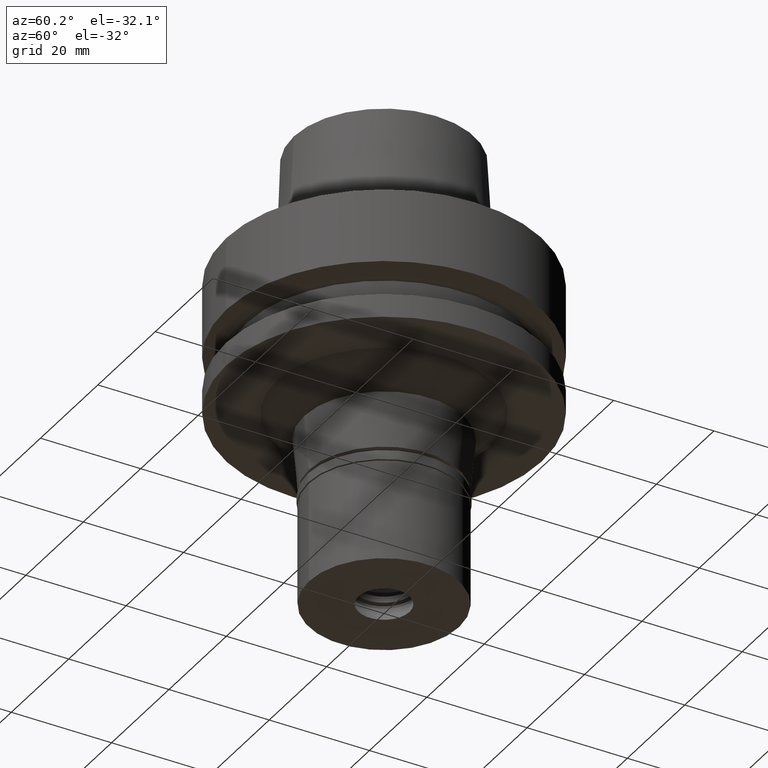
[diagram: clean part render]
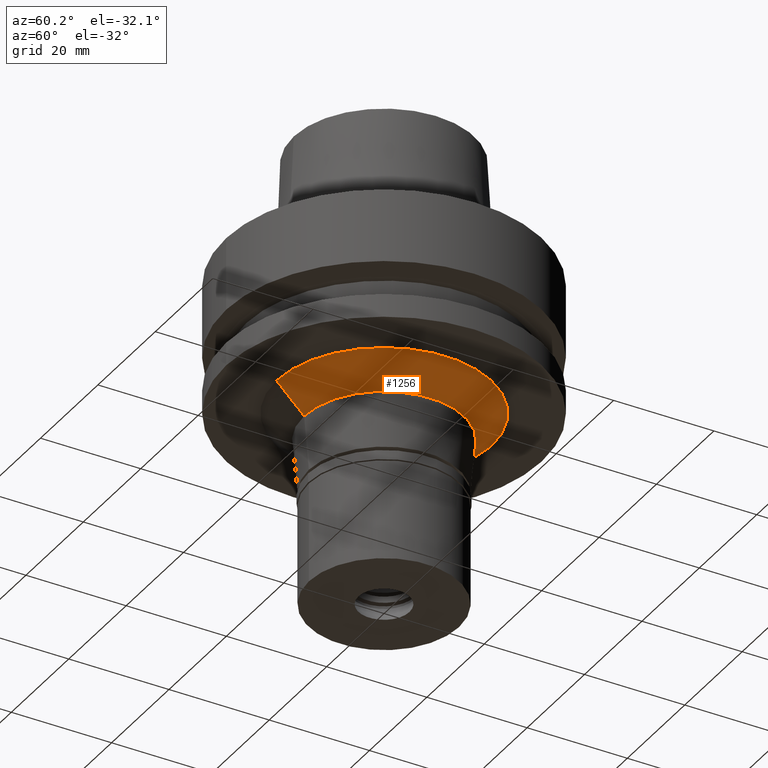
[diagram: same view with one face highlighted and labeled with its STEP entity id]
A machine part, auxiliary view. The second image highlights one B-rep face of the part: STEP entity #1256.
In plain terms, the highlighted conical surface has half-angle 45 deg.
Its self-contained STEP definition (entity closure, byte-faithful):
#35 = CARTESIAN_POINT ( 'NONE',  ( 0.0000000000000000000, 0.0000000000000000000, -28.75000000000000000 ) ) ;
#104 = ORIENTED_EDGE ( 'NONE', *, *, #2002, .T. ) ;
#202 = DIRECTION ( 'NONE',  ( 0.0000000000000000000, 0.0000000000000000000, -1.000000000000000000 ) ) ;
#292 = CARTESIAN_POINT ( 'NONE',  ( 0.0000000000000000000, 21.43612869973000201, -26.00000000000000000 ) ) ;
#355 = AXIS2_PLACEMENT_3D ( 'NONE', #1401, #989, #1819 ) ;
#433 = EDGE_CURVE ( 'NONE', #570, #2287, #1368, .T. ) ;
#497 = CIRCLE ( 'NONE', #2079, 21.43612869973000201 ) ;
#570 = VERTEX_POINT ( 'NONE', #2426 ) ;
#695 = DIRECTION ( 'NONE',  ( 0.0000000000000000000, 0.0000000000000000000, 1.000000000000000000 ) ) ;
#736 = CARTESIAN_POINT ( 'NONE',  ( 0.0000000000000000000, -21.43612869973000201, -26.00000000000000000 ) ) ;
#945 = FACE_OUTER_BOUND ( 'NONE', #2054, .T. ) ;
#989 = DIRECTION ( 'NONE',  ( 0.0000000000000000000, 0.0000000000000000000, 1.000000000000000000 ) ) ;
#1036 = CARTESIAN_POINT ( 'NONE',  ( 0.0000000000000000000, 15.93612869973000024, -31.50000000000000000 ) ) ;
#1119 = CARTESIAN_POINT ( 'NONE',  ( 0.0000000000000000000, -15.93612869973000024, -31.50000000000000000 ) ) ;
#1125 = CARTESIAN_POINT ( 'NONE',  ( 0.0000000000000000000, 0.0000000000000000000, -26.00000000000000000 ) ) ;
#1139 = AXIS2_PLACEMENT_3D ( 'NONE', #35, #695, #1759 ) ;
#1201 = ORIENTED_EDGE ( 'NONE', *, *, #433, .F. ) ;
#1256 = ADVANCED_FACE ( 'NONE', ( #945 ), #1347, .T. ) ;
#1300 = CARTESIAN_POINT ( 'NONE',  ( 0.0000000000000000000, -21.43612869973000201, -26.00000000000000000 ) ) ;
#1347 = CONICAL_SURFACE ( 'NONE', #1139, 18.68612869973000201, 0.7853981633972997312 ) ;
#1360 = EDGE_CURVE ( 'NONE', #2037, #2287, #2650, .T. ) ;
#1368 = LINE ( 'NONE', #292, #2726 ) ;
#1401 = CARTESIAN_POINT ( 'NONE',  ( 0.0000000000000000000, 0.0000000000000000000, -31.50000000000000000 ) ) ;
#1703 = VERTEX_POINT ( 'NONE', #736 ) ;
#1759 = DIRECTION ( 'NONE',  ( 0.0000000000000000000, 1.000000000000000000, 0.0000000000000000000 ) ) ;
#1819 = DIRECTION ( 'NONE',  ( 0.0000000000000000000, -1.000000000000000000, 0.0000000000000000000 ) ) ;
#1965 = ORIENTED_EDGE ( 'NONE', *, *, #2529, .T. ) ;
#1975 = LINE ( 'NONE', #1300, #2737 ) ;
#1990 = ORIENTED_EDGE ( 'NONE', *, *, #1360, .T. ) ;
#2002 = EDGE_CURVE ( 'NONE', #1703, #2037, #1975, .T. ) ;
#2037 = VERTEX_POINT ( 'NONE', #1119 ) ;
#2054 = EDGE_LOOP ( 'NONE', ( #1965, #104, #1990, #1201 ) ) ;
#2079 = AXIS2_PLACEMENT_3D ( 'NONE', #1125, #202, #2545 ) ;
#2218 = DIRECTION ( 'NONE',  ( 0.0000000000000000000, -0.7071067811867974839, -0.7071067811862974395 ) ) ;
#2287 = VERTEX_POINT ( 'NONE', #1036 ) ;
#2359 = DIRECTION ( 'NONE',  ( 0.0000000000000000000, 0.7071067811867974839, -0.7071067811862974395 ) ) ;
#2426 = CARTESIAN_POINT ( 'NONE',  ( 0.0000000000000000000, 21.43612869973000201, -26.00000000000000000 ) ) ;
#2529 = EDGE_CURVE ( 'NONE', #570, #1703, #497, .T. ) ;
#2545 = DIRECTION ( 'NONE',  ( 0.0000000000000000000, 1.000000000000000000, 0.0000000000000000000 ) ) ;
#2650 = CIRCLE ( 'NONE', #355, 15.93612869971999757 ) ;
#2726 = VECTOR ( 'NONE', #2218, 1000.000000000000114 ) ;
#2737 = VECTOR ( 'NONE', #2359, 1000.000000000000114 ) ;